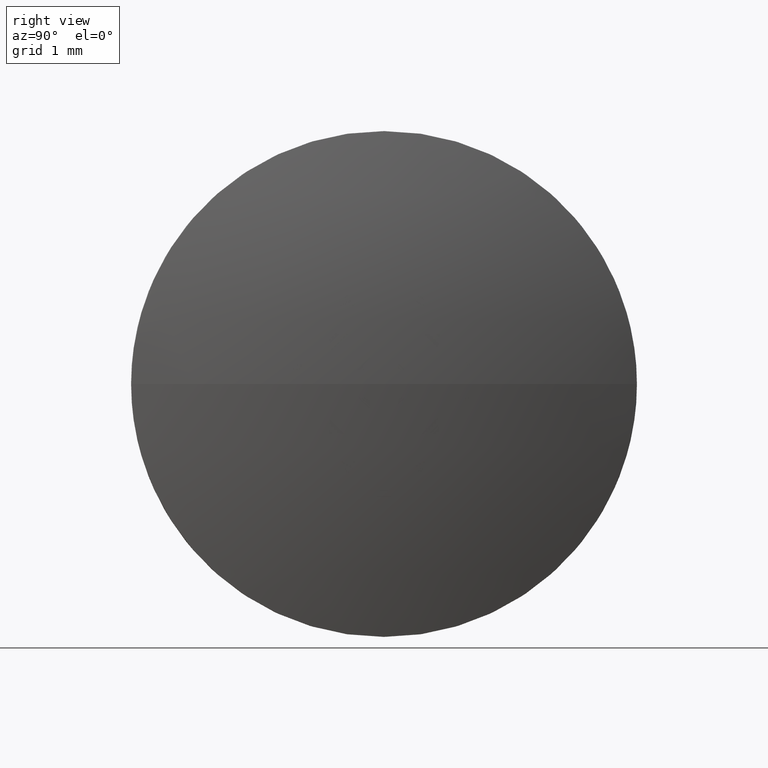
[diagram: clean part render]
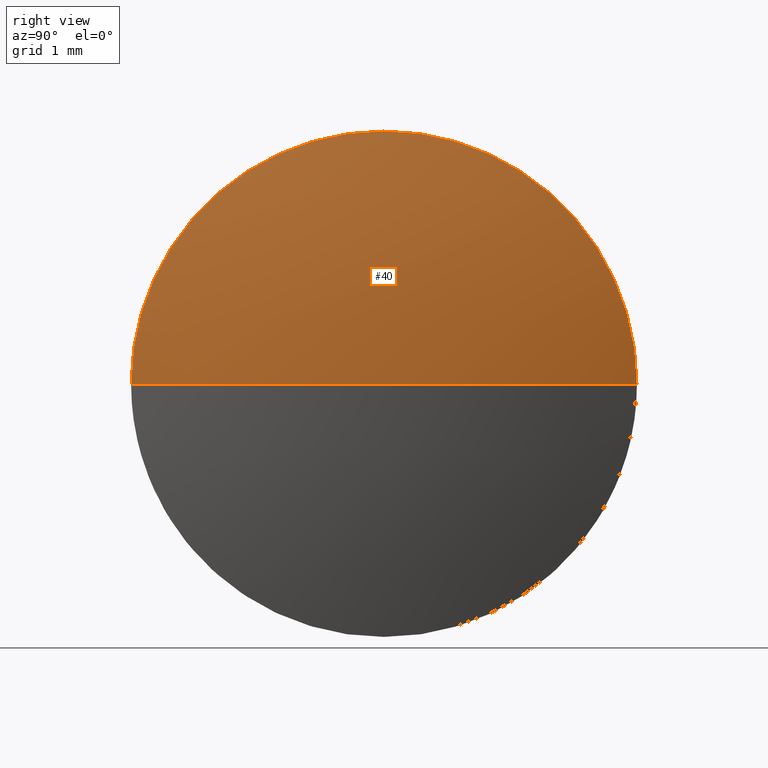
[diagram: same view with one face highlighted and labeled with its STEP entity id]
A machine part, right view. The second image highlights one B-rep face of the part: STEP entity #40.
In plain terms, the highlighted spherical surface has radius 12.9162 mm.
Its self-contained STEP definition (entity closure, byte-faithful):
#6 = CIRCLE ( 'NONE', #175, 3.149999999999999900 ) ;
#7 = CARTESIAN_POINT ( 'NONE',  ( 619.0150449967926500, 86.56717814228176200, 0.0000000000000000000 ) ) ;
#14 = EDGE_LOOP ( 'NONE', ( #179, #43, #99, #171 ) ) ;
#19 = CARTESIAN_POINT ( 'NONE',  ( 606.4888911506387800, 86.56717814228196100, 0.0000000000000000000 ) ) ;
#26 = DIRECTION ( 'NONE',  ( 0.0000000000000000000, 0.0000000000000000000, -1.000000000000000000 ) ) ;
#28 = AXIS2_PLACEMENT_3D ( 'NONE', #44, #167, #144 ) ;
#33 = DIRECTION ( 'NONE',  ( 0.0000000000000000000, -1.000000000000000000, 0.0000000000000000000 ) ) ;
#36 = CIRCLE ( 'NONE', #93, 3.149999999999999900 ) ;
#37 = CARTESIAN_POINT ( 'NONE',  ( 619.0150449967926500, 86.56717814228176200, 3.149999999999999900 ) ) ;
#38 = DIRECTION ( 'NONE',  ( -1.000000000000000000, 0.0000000000000000000, 0.0000000000000000000 ) ) ;
#40 = ADVANCED_FACE ( 'NONE', ( #137 ), #111, .T. ) ;
#43 = ORIENTED_EDGE ( 'NONE', *, *, #149, .T. ) ;
#44 = CARTESIAN_POINT ( 'NONE',  ( 606.4888911506387800, 86.56717814228196100, 0.0000000000000000000 ) ) ;
#48 = CIRCLE ( 'NONE', #161, 12.91615384615385400 ) ;
#55 = DIRECTION ( 'NONE',  ( 0.0000000000000000000, 0.0000000000000000000, 1.000000000000000000 ) ) ;
#63 = VERTEX_POINT ( 'NONE', #37 ) ;
#66 = CARTESIAN_POINT ( 'NONE',  ( 619.4050449967926400, 86.56717814228196100, 0.0000000000000000000 ) ) ;
#69 = CARTESIAN_POINT ( 'NONE',  ( 619.0150449967926500, 83.41717814228191200, 0.0000000000000000000 ) ) ;
#72 = EDGE_CURVE ( 'NONE', #63, #168, #36, .T. ) ;
#85 = CIRCLE ( 'NONE', #28, 12.91615384615382700 ) ;
#89 = DIRECTION ( 'NONE',  ( -1.000000000000000000, -0.0000000000000000000, -0.0000000000000000000 ) ) ;
#91 = DIRECTION ( 'NONE',  ( -1.000000000000000000, -0.0000000000000000000, -0.0000000000000000000 ) ) ;
#93 = AXIS2_PLACEMENT_3D ( 'NONE', #7, #89, #129 ) ;
#95 = AXIS2_PLACEMENT_3D ( 'NONE', #19, #55, #33 ) ;
#99 = ORIENTED_EDGE ( 'NONE', *, *, #72, .F. ) ;
#107 = CARTESIAN_POINT ( 'NONE',  ( 606.4888911506387800, 86.56717814228196100, 0.0000000000000000000 ) ) ;
#111 = SPHERICAL_SURFACE ( 'NONE', #95, 12.91615384615383100 ) ;
#116 = VERTEX_POINT ( 'NONE', #66 ) ;
#121 = EDGE_CURVE ( 'NONE', #116, #155, #48, .T. ) ;
#124 = EDGE_CURVE ( 'NONE', #155, #63, #6, .T. ) ;
#129 = DIRECTION ( 'NONE',  ( 0.0000000000000000000, 0.0000000000000000000, 1.000000000000000000 ) ) ;
#133 = DIRECTION ( 'NONE',  ( 0.0000000000000000000, 0.0000000000000000000, 1.000000000000000000 ) ) ;
#137 = FACE_OUTER_BOUND ( 'NONE', #14, .T. ) ;
#142 = CARTESIAN_POINT ( 'NONE',  ( 619.0150449967926500, 89.71717814228181000, 3.857637417313981300E-016 ) ) ;
#144 = DIRECTION ( 'NONE',  ( 0.0000000000000000000, -1.000000000000000000, -1.224646799147353700E-016 ) ) ;
#145 = CARTESIAN_POINT ( 'NONE',  ( 619.0150449967926500, 86.56717814228176200, 0.0000000000000000000 ) ) ;
#149 = EDGE_CURVE ( 'NONE', #116, #168, #85, .T. ) ;
#155 = VERTEX_POINT ( 'NONE', #69 ) ;
#161 = AXIS2_PLACEMENT_3D ( 'NONE', #107, #26, #38 ) ;
#167 = DIRECTION ( 'NONE',  ( 0.0000000000000000000, -1.224646799147353200E-016, 1.000000000000000000 ) ) ;
#168 = VERTEX_POINT ( 'NONE', #142 ) ;
#171 = ORIENTED_EDGE ( 'NONE', *, *, #124, .F. ) ;
#175 = AXIS2_PLACEMENT_3D ( 'NONE', #145, #91, #133 ) ;
#179 = ORIENTED_EDGE ( 'NONE', *, *, #121, .F. ) ;